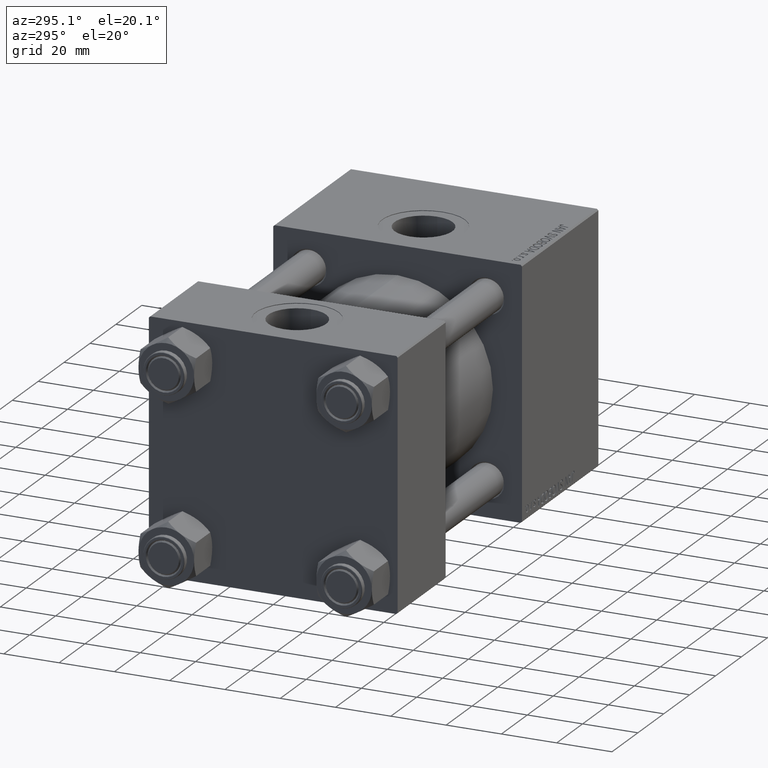
[diagram: clean part render]
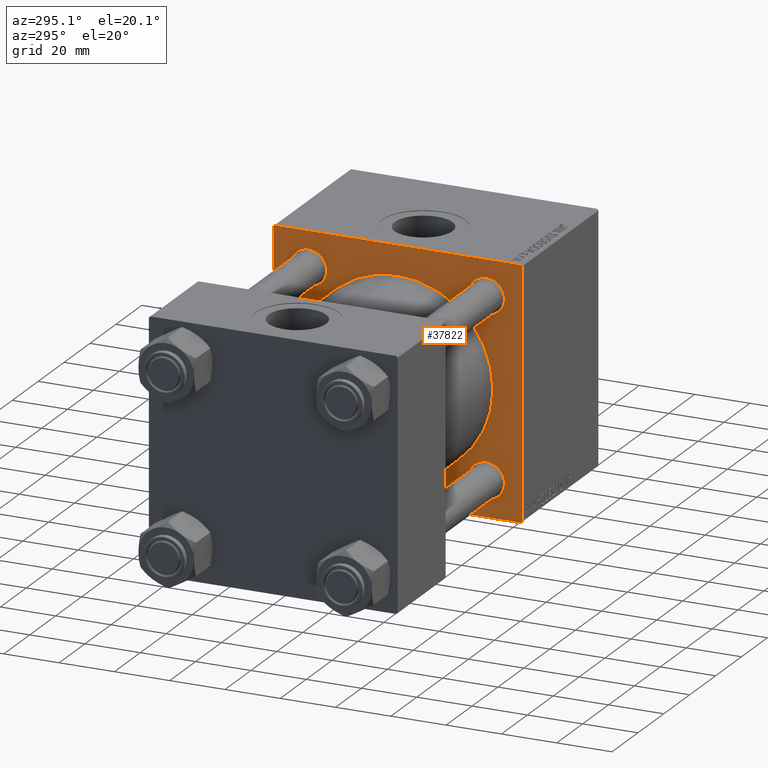
[diagram: same view with one face highlighted and labeled with its STEP entity id]
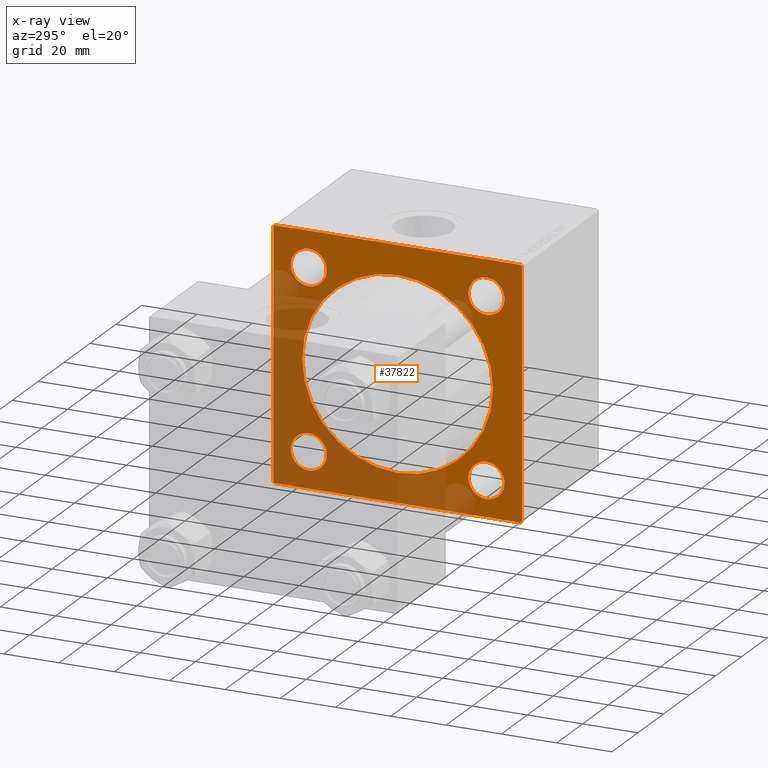
[diagram: x-ray of the same camera — body ghosted, the highlighted face saturated]
A machine part, auxiliary view. The second image highlights one B-rep face of the part: STEP entity #37822.
The next image is the same camera in x-ray: the body ghosted, the highlighted face saturated — about 42% of this face is hidden behind the body in this view.
In plain terms, the highlighted planar face has unit normal (-1, 0, 0).
Its self-contained STEP definition (entity closure, byte-faithful):
#92 = ORIENTED_EDGE ( 'NONE', *, *, #36060, .T. ) ;
#287 = CARTESIAN_POINT ( 'NONE',  ( 96.00000000000000000, -32.14999999999997726, 32.15000000000001279 ) ) ;
#356 = VERTEX_POINT ( 'NONE', #21106 ) ;
#1336 = CARTESIAN_POINT ( 'NONE',  ( 96.00000000000000000, 1.622946243093158675E-15, -34.50000000000000000 ) ) ;
#1508 = FACE_OUTER_BOUND ( 'NONE', #44086, .T. ) ;
#1644 = CARTESIAN_POINT ( 'NONE',  ( 96.00000000000000000, -2.602085213965210642E-15, 0.000000000000000000 ) ) ;
#1667 = VERTEX_POINT ( 'NONE', #7382 ) ;
#1796 = ORIENTED_EDGE ( 'NONE', *, *, #27104, .T. ) ;
#2089 = DIRECTION ( 'NONE',  ( 0.000000000000000000, 0.000000000000000000, 1.000000000000000000 ) ) ;
#2421 = AXIS2_PLACEMENT_3D ( 'NONE', #27977, #47542, #40185 ) ;
#2853 = VERTEX_POINT ( 'NONE', #42497 ) ;
#3324 = LINE ( 'NONE', #46290, #13391 ) ;
#4919 = VECTOR ( 'NONE', #11164, 1000.000000000000114 ) ;
#4941 = DIRECTION ( 'NONE',  ( 1.000000000000000000, 0.000000000000000000, 0.000000000000000000 ) ) ;
#5685 = DIRECTION ( 'NONE',  ( 0.000000000000000000, 0.000000000000000000, 1.000000000000000000 ) ) ;
#5937 = CIRCLE ( 'NONE', #31934, 34.50000000000000000 ) ;
#6072 = ORIENTED_EDGE ( 'NONE', *, *, #18319, .T. ) ;
#6103 = EDGE_CURVE ( 'NONE', #27701, #39494, #42155, .T. ) ;
#6160 = CARTESIAN_POINT ( 'NONE',  ( 96.00000000000000000, 44.74999999999998579, 44.74999999999998579 ) ) ;
#6886 = EDGE_CURVE ( 'NONE', #2853, #20241, #13567, .T. ) ;
#7382 = CARTESIAN_POINT ( 'NONE',  ( 96.00000000000000000, -45.00000000000000000, 44.49999999999995737 ) ) ;
#7412 = VERTEX_POINT ( 'NONE', #44217 ) ;
#7452 = CARTESIAN_POINT ( 'NONE',  ( 96.00000000000000000, 32.14999999999999147, -32.15000000000000568 ) ) ;
#7761 = EDGE_LOOP ( 'NONE', ( #40343, #21091 ) ) ;
#7794 = CIRCLE ( 'NONE', #28138, 6.500000000000005329 ) ;
#9014 = DIRECTION ( 'NONE',  ( 0.000000000000000000, 0.000000000000000000, 1.000000000000000000 ) ) ;
#9779 = CARTESIAN_POINT ( 'NONE',  ( 96.00000000000000000, 32.14999999999999147, -38.65000000000001279 ) ) ;
#10017 = CARTESIAN_POINT ( 'NONE',  ( 96.00000000000000000, 32.14999999999999147, 32.15000000000000568 ) ) ;
#10037 = CIRCLE ( 'NONE', #30311, 6.500000000000005329 ) ;
#10552 = EDGE_CURVE ( 'NONE', #15864, #42422, #34071, .T. ) ;
#10806 = VECTOR ( 'NONE', #45299, 1000.000000000000000 ) ;
#10822 = EDGE_LOOP ( 'NONE', ( #34702, #1796 ) ) ;
#11164 = DIRECTION ( 'NONE',  ( -0.000000000000000000, -0.7071067811865474617, -0.7071067811865474617 ) ) ;
#11400 = DIRECTION ( 'NONE',  ( 1.000000000000000000, 0.000000000000000000, 0.000000000000000000 ) ) ;
#11811 = ORIENTED_EDGE ( 'NONE', *, *, #49892, .T. ) ;
#11907 = CARTESIAN_POINT ( 'NONE',  ( 96.00000000000000000, -2.602085213965210642E-15, 0.000000000000000000 ) ) ;
#12044 = DIRECTION ( 'NONE',  ( 0.000000000000000000, 0.000000000000000000, 1.000000000000000000 ) ) ;
#12964 = FACE_BOUND ( 'NONE', #21226, .T. ) ;
#13391 = VECTOR ( 'NONE', #37693, 1000.000000000000000 ) ;
#13567 = LINE ( 'NONE', #44583, #35673 ) ;
#13628 = CARTESIAN_POINT ( 'NONE',  ( 96.00000000000000000, 44.50000000000001421, -45.00000000000000000 ) ) ;
#13672 = DIRECTION ( 'NONE',  ( 1.000000000000000000, 0.000000000000000000, 0.000000000000000000 ) ) ;
#13955 = VERTEX_POINT ( 'NONE', #41473 ) ;
#13967 = FACE_BOUND ( 'NONE', #10822, .T. ) ;
#15337 = EDGE_CURVE ( 'NONE', #39494, #27701, #5937, .T. ) ;
#15443 = EDGE_LOOP ( 'NONE', ( #92, #33885 ) ) ;
#15547 = EDGE_CURVE ( 'NONE', #33420, #13955, #49897, .T. ) ;
#15548 = DIRECTION ( 'NONE',  ( 1.000000000000000000, 0.000000000000000000, 0.000000000000000000 ) ) ;
#15797 = EDGE_CURVE ( 'NONE', #7412, #15864, #40741, .T. ) ;
#15864 = VERTEX_POINT ( 'NONE', #45052 ) ;
#16384 = EDGE_CURVE ( 'NONE', #1667, #20241, #20728, .T. ) ;
#16601 = CARTESIAN_POINT ( 'NONE',  ( 96.00000000000000000, -32.14999999999997726, -32.15000000000001279 ) ) ;
#16990 = EDGE_LOOP ( 'NONE', ( #11811, #24599 ) ) ;
#17051 = AXIS2_PLACEMENT_3D ( 'NONE', #32793, #29476, #32541 ) ;
#17361 = ORIENTED_EDGE ( 'NONE', *, *, #23518, .F. ) ;
#17878 = VERTEX_POINT ( 'NONE', #31711 ) ;
#18319 = EDGE_CURVE ( 'NONE', #41714, #23581, #29579, .T. ) ;
#19166 = ORIENTED_EDGE ( 'NONE', *, *, #6886, .F. ) ;
#19221 = VERTEX_POINT ( 'NONE', #9779 ) ;
#19333 = CARTESIAN_POINT ( 'NONE',  ( 96.00000000000000000, 32.14999999999999147, 25.65000000000000213 ) ) ;
#19723 = VERTEX_POINT ( 'NONE', #46497 ) ;
#19897 = CARTESIAN_POINT ( 'NONE',  ( 96.00000000000000000, -44.74999999999965183, -44.75000000000027001 ) ) ;
#20241 = VERTEX_POINT ( 'NONE', #35193 ) ;
#20328 = EDGE_CURVE ( 'NONE', #19221, #356, #35192, .T. ) ;
#20666 = DIRECTION ( 'NONE',  ( 1.000000000000000000, 0.000000000000000000, 0.000000000000000000 ) ) ;
#20728 = LINE ( 'NONE', #40308, #31124 ) ;
#20840 = FACE_BOUND ( 'NONE', #16990, .T. ) ;
#21091 = ORIENTED_EDGE ( 'NONE', *, *, #15337, .T. ) ;
#21106 = CARTESIAN_POINT ( 'NONE',  ( 96.00000000000000000, 32.14999999999999147, -25.64999999999999858 ) ) ;
#21226 = EDGE_LOOP ( 'NONE', ( #6072, #44720 ) ) ;
#21653 = CARTESIAN_POINT ( 'NONE',  ( 96.00000000000000000, 32.14999999999999147, 32.15000000000000568 ) ) ;
#21761 = CARTESIAN_POINT ( 'NONE',  ( 96.00000000000000000, 32.14999999999999147, 38.65000000000001279 ) ) ;
#22248 = ORIENTED_EDGE ( 'NONE', *, *, #16384, .T. ) ;
#22404 = ORIENTED_EDGE ( 'NONE', *, *, #10552, .T. ) ;
#22857 = CARTESIAN_POINT ( 'NONE',  ( 96.00000000000000000, -32.14999999999997726, -25.65000000000000568 ) ) ;
#23045 = CARTESIAN_POINT ( 'NONE',  ( 96.00000000000000000, -44.49999999999990052, -45.00000000000000000 ) ) ;
#23518 = EDGE_CURVE ( 'NONE', #1667, #13955, #3324, .T. ) ;
#23581 = VERTEX_POINT ( 'NONE', #19333 ) ;
#24483 = ORIENTED_EDGE ( 'NONE', *, *, #33023, .T. ) ;
#24599 = ORIENTED_EDGE ( 'NONE', *, *, #43753, .T. ) ;
#24838 = ORIENTED_EDGE ( 'NONE', *, *, #15797, .T. ) ;
#26122 = CARTESIAN_POINT ( 'NONE',  ( 96.00000000000000000, -32.14999999999997726, 32.15000000000001279 ) ) ;
#26823 = CIRCLE ( 'NONE', #33340, 6.500000000000005329 ) ;
#27104 = EDGE_CURVE ( 'NONE', #17878, #33563, #7794, .T. ) ;
#27701 = VERTEX_POINT ( 'NONE', #38244 ) ;
#27977 = CARTESIAN_POINT ( 'NONE',  ( 96.00000000000000000, 32.14999999999999147, -32.15000000000000568 ) ) ;
#28138 = AXIS2_PLACEMENT_3D ( 'NONE', #16601, #20666, #2089 ) ;
#28494 = EDGE_CURVE ( 'NONE', #23581, #41714, #48467, .T. ) ;
#28705 = AXIS2_PLACEMENT_3D ( 'NONE', #7452, #46118, #12044 ) ;
#29476 = DIRECTION ( 'NONE',  ( -1.000000000000000000, 0.000000000000000000, -0.000000000000000000 ) ) ;
#29579 = CIRCLE ( 'NONE', #40148, 6.499999999999999112 ) ;
#30311 = AXIS2_PLACEMENT_3D ( 'NONE', #26122, #13672, #41133 ) ;
#30791 = AXIS2_PLACEMENT_3D ( 'NONE', #11907, #11400, #46484 ) ;
#31088 = DIRECTION ( 'NONE',  ( 0.000000000000000000, -0.7071067811865524577, 0.7071067811865426878 ) ) ;
#31124 = VECTOR ( 'NONE', #32934, 1000.000000000000114 ) ;
#31711 = CARTESIAN_POINT ( 'NONE',  ( 96.00000000000000000, -32.14999999999997726, -38.65000000000001990 ) ) ;
#31934 = AXIS2_PLACEMENT_3D ( 'NONE', #1644, #36491, #36236 ) ;
#32039 = EDGE_CURVE ( 'NONE', #42422, #33420, #47543, .T. ) ;
#32152 = CARTESIAN_POINT ( 'NONE',  ( 96.00000000000000000, -32.14999999999997726, 38.65000000000002700 ) ) ;
#32253 = AXIS2_PLACEMENT_3D ( 'NONE', #10017, #36224, #5685 ) ;
#32541 = DIRECTION ( 'NONE',  ( -0.000000000000000000, 0.000000000000000000, 1.000000000000000000 ) ) ;
#32651 = DIRECTION ( 'NONE',  ( 0.000000000000000000, -1.000000000000000000, -1.541976423090495140E-16 ) ) ;
#32793 = CARTESIAN_POINT ( 'NONE',  ( 96.00000000000000000, 0.000000000000000000, 0.000000000000000000 ) ) ;
#32934 = DIRECTION ( 'NONE',  ( -0.000000000000000000, 0.7071067811865474617, 0.7071067811865474617 ) ) ;
#33023 = EDGE_CURVE ( 'NONE', #2853, #7412, #33123, .T. ) ;
#33123 = LINE ( 'NONE', #6160, #47749 ) ;
#33248 = DIRECTION ( 'NONE',  ( 0.000000000000000000, 0.000000000000000000, 1.000000000000000000 ) ) ;
#33340 = AXIS2_PLACEMENT_3D ( 'NONE', #287, #15548, #38687 ) ;
#33420 = VERTEX_POINT ( 'NONE', #23045 ) ;
#33563 = VERTEX_POINT ( 'NONE', #22857 ) ;
#33885 = ORIENTED_EDGE ( 'NONE', *, *, #20328, .T. ) ;
#34071 = LINE ( 'NONE', #40766, #4919 ) ;
#34702 = ORIENTED_EDGE ( 'NONE', *, *, #47584, .T. ) ;
#34768 = ORIENTED_EDGE ( 'NONE', *, *, #32039, .T. ) ;
#35193 = CARTESIAN_POINT ( 'NONE',  ( 96.00000000000000000, -44.49999999999994316, 44.99999999999998579 ) ) ;
#35192 = CIRCLE ( 'NONE', #28705, 6.500000000000005329 ) ;
#35673 = VECTOR ( 'NONE', #32651, 1000.000000000000000 ) ;
#36060 = EDGE_CURVE ( 'NONE', #356, #19221, #47848, .T. ) ;
#36224 = DIRECTION ( 'NONE',  ( 1.000000000000000000, 0.000000000000000000, 0.000000000000000000 ) ) ;
#36236 = DIRECTION ( 'NONE',  ( 0.000000000000000000, 0.000000000000000000, -1.000000000000000000 ) ) ;
#36491 = DIRECTION ( 'NONE',  ( 1.000000000000000000, 0.000000000000000000, 0.000000000000000000 ) ) ;
#36618 = FACE_BOUND ( 'NONE', #15443, .T. ) ;
#36632 = CARTESIAN_POINT ( 'NONE',  ( 96.00000000000000000, 45.00000000000001421, -45.00000000000000000 ) ) ;
#37481 = ORIENTED_EDGE ( 'NONE', *, *, #15547, .T. ) ;
#37651 = VECTOR ( 'NONE', #31088, 1000.000000000000000 ) ;
#37693 = DIRECTION ( 'NONE',  ( 0.000000000000000000, 7.709882115452478166E-17, -1.000000000000000000 ) ) ;
#37822 = ADVANCED_FACE ( 'NONE', ( #20840, #12964, #36618, #13967, #40678, #1508 ), #40927, .T. ) ;
#38244 = CARTESIAN_POINT ( 'NONE',  ( 96.00000000000000000, -2.602085213965210642E-15, 34.50000000000000000 ) ) ;
#38370 = DIRECTION ( 'NONE',  ( 0.000000000000000000, 0.7071067811865474617, -0.7071067811865474617 ) ) ;
#38687 = DIRECTION ( 'NONE',  ( 0.000000000000000000, 0.000000000000000000, 1.000000000000000000 ) ) ;
#39494 = VERTEX_POINT ( 'NONE', #1336 ) ;
#40148 = AXIS2_PLACEMENT_3D ( 'NONE', #21653, #4941, #9014 ) ;
#40185 = DIRECTION ( 'NONE',  ( 0.000000000000000000, 0.000000000000000000, 1.000000000000000000 ) ) ;
#40308 = CARTESIAN_POINT ( 'NONE',  ( 96.00000000000000000, -44.74999999999997158, 44.74999999999997158 ) ) ;
#40343 = ORIENTED_EDGE ( 'NONE', *, *, #6103, .T. ) ;
#40633 = DIRECTION ( 'NONE',  ( 1.000000000000000000, 0.000000000000000000, 0.000000000000000000 ) ) ;
#40678 = FACE_BOUND ( 'NONE', #7761, .T. ) ;
#40741 = LINE ( 'NONE', #41234, #10806 ) ;
#40766 = CARTESIAN_POINT ( 'NONE',  ( 96.00000000000000000, 44.75000000000000000, -44.75000000000000000 ) ) ;
#40927 = PLANE ( 'NONE',  #17051 ) ;
#41133 = DIRECTION ( 'NONE',  ( 0.000000000000000000, 0.000000000000000000, 1.000000000000000000 ) ) ;
#41234 = CARTESIAN_POINT ( 'NONE',  ( 96.00000000000000000, 45.00000000000001421, 45.00000000000000000 ) ) ;
#41473 = CARTESIAN_POINT ( 'NONE',  ( 96.00000000000000000, -44.99999999999999289, -44.49999999999991473 ) ) ;
#41714 = VERTEX_POINT ( 'NONE', #21761 ) ;
#42042 = VECTOR ( 'NONE', #48311, 1000.000000000000000 ) ;
#42155 = CIRCLE ( 'NONE', #30791, 34.50000000000000000 ) ;
#42422 = VERTEX_POINT ( 'NONE', #13628 ) ;
#42497 = CARTESIAN_POINT ( 'NONE',  ( 96.00000000000000000, 44.49999999999998579, 45.00000000000000000 ) ) ;
#43753 = EDGE_CURVE ( 'NONE', #19723, #45858, #26823, .T. ) ;
#44086 = EDGE_LOOP ( 'NONE', ( #34768, #37481, #17361, #22248, #19166, #24483, #24838, #22404 ) ) ;
#44217 = CARTESIAN_POINT ( 'NONE',  ( 96.00000000000000000, 45.00000000000001421, 44.49999999999997158 ) ) ;
#44438 = CARTESIAN_POINT ( 'NONE',  ( 96.00000000000000000, -32.14999999999997726, -32.15000000000001279 ) ) ;
#44583 = CARTESIAN_POINT ( 'NONE',  ( 96.00000000000000000, 45.00000000000001421, 45.00000000000000000 ) ) ;
#44720 = ORIENTED_EDGE ( 'NONE', *, *, #28494, .T. ) ;
#45052 = CARTESIAN_POINT ( 'NONE',  ( 96.00000000000000000, 45.00000000000001421, -44.49999999999997158 ) ) ;
#45299 = DIRECTION ( 'NONE',  ( 0.000000000000000000, 0.000000000000000000, -1.000000000000000000 ) ) ;
#45858 = VERTEX_POINT ( 'NONE', #32152 ) ;
#46118 = DIRECTION ( 'NONE',  ( 1.000000000000000000, 0.000000000000000000, 0.000000000000000000 ) ) ;
#46290 = CARTESIAN_POINT ( 'NONE',  ( 96.00000000000000000, -45.00000000000000000, 44.99999999999998579 ) ) ;
#46484 = DIRECTION ( 'NONE',  ( 0.000000000000000000, 0.000000000000000000, -1.000000000000000000 ) ) ;
#46497 = CARTESIAN_POINT ( 'NONE',  ( 96.00000000000000000, -32.14999999999997726, 25.65000000000000213 ) ) ;
#47298 = AXIS2_PLACEMENT_3D ( 'NONE', #44438, #40633, #33248 ) ;
#47542 = DIRECTION ( 'NONE',  ( 1.000000000000000000, 0.000000000000000000, 0.000000000000000000 ) ) ;
#47543 = LINE ( 'NONE', #36632, #42042 ) ;
#47584 = EDGE_CURVE ( 'NONE', #33563, #17878, #48944, .T. ) ;
#47749 = VECTOR ( 'NONE', #38370, 1000.000000000000114 ) ;
#47848 = CIRCLE ( 'NONE', #2421, 6.500000000000005329 ) ;
#48311 = DIRECTION ( 'NONE',  ( 0.000000000000000000, -1.000000000000000000, 0.000000000000000000 ) ) ;
#48467 = CIRCLE ( 'NONE', #32253, 6.499999999999999112 ) ;
#48944 = CIRCLE ( 'NONE', #47298, 6.500000000000005329 ) ;
#49892 = EDGE_CURVE ( 'NONE', #45858, #19723, #10037, .T. ) ;
#49897 = LINE ( 'NONE', #19897, #37651 ) ;